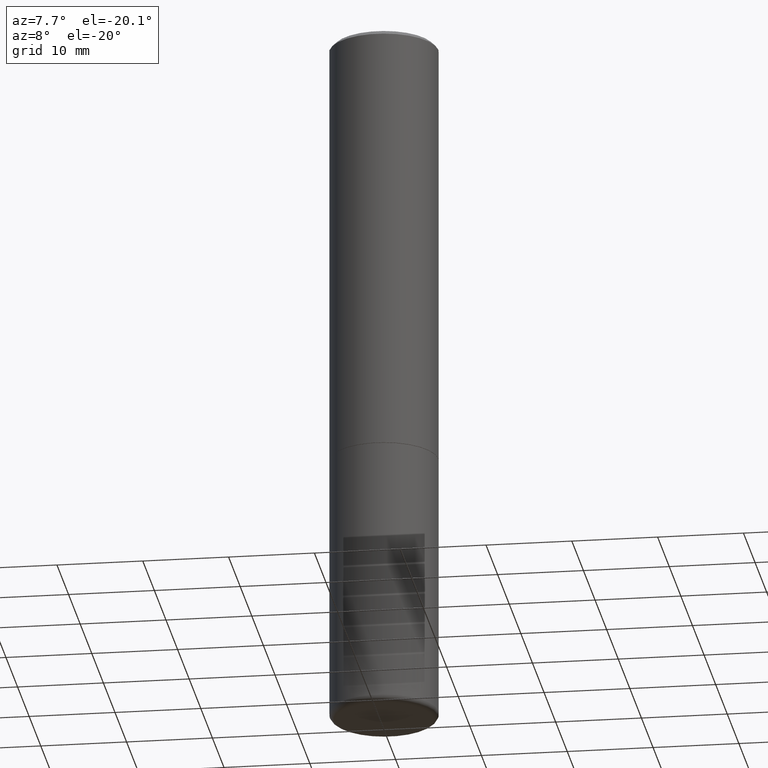
[diagram: clean part render]
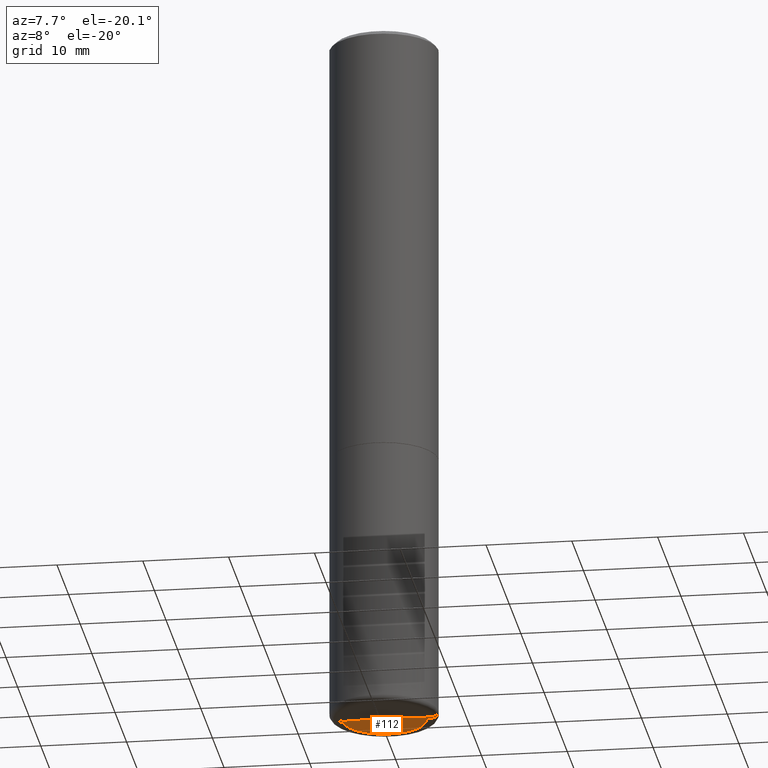
[diagram: same view with one face highlighted and labeled with its STEP entity id]
A machine part, auxiliary view. The second image highlights one B-rep face of the part: STEP entity #112.
In plain terms, the highlighted conical surface has half-angle 88 deg.
Its self-contained STEP definition (entity closure, byte-faithful):
#5 = EDGE_CURVE ( 'NONE', #446, #434, #256, .T. ) ;
#26 = DIRECTION ( 'NONE',  ( -2.445468806185136597E-29, 3.491481338843145583E-15, 1.000000000000000000 ) ) ;
#31 = ORIENTED_EDGE ( 'NONE', *, *, #71, .T. ) ;
#32 = CARTESIAN_POINT ( 'NONE',  ( 0.1930732039350491758, -1.267108020581511100E-14, -3.249767298070359800 ) ) ;
#66 = VECTOR ( 'NONE', #260, 39.37007874015748143 ) ;
#71 = EDGE_CURVE ( 'NONE', #177, #434, #449, .T. ) ;
#75 = CARTESIAN_POINT ( 'NONE',  ( 7.947204554791619182E-29, -1.134650187679537143E-14, -3.249767298070359800 ) ) ;
#78 = FACE_OUTER_BOUND ( 'NONE', #186, .T. ) ;
#82 = DIRECTION ( 'NONE',  ( 2.445468806185136597E-29, -3.491481338843145583E-15, -1.000000000000000000 ) ) ;
#112 = ADVANCED_FACE ( 'NONE', ( #78 ), #431, .F. ) ;
#163 = CARTESIAN_POINT ( 'NONE',  ( 7.929934496680489280E-29, -1.132408133894856808E-14, -3.243025033220710451 ) ) ;
#165 = AXIS2_PLACEMENT_3D ( 'NONE', #75, #82, #378 ) ;
#177 = VERTEX_POINT ( 'NONE', #163 ) ;
#186 = EDGE_LOOP ( 'NONE', ( #395, #31, #236 ) ) ;
#195 = LINE ( 'NONE', #349, #225 ) ;
#206 = EDGE_CURVE ( 'NONE', #177, #446, #195, .T. ) ;
#225 = VECTOR ( 'NONE', #270, 39.37007874015748143 ) ;
#236 = ORIENTED_EDGE ( 'NONE', *, *, #5, .F. ) ;
#256 = CIRCLE ( 'NONE', #280, 0.1930732039350491758 ) ;
#260 = DIRECTION ( 'NONE',  ( -0.9993908270190957621, 6.856857904024556470E-15, -0.03489949670250108021 ) ) ;
#270 = DIRECTION ( 'NONE',  ( 0.9993908270190957621, -6.978169709227541488E-15, -0.03489949670250108021 ) ) ;
#280 = AXIS2_PLACEMENT_3D ( 'NONE', #332, #26, #405 ) ;
#299 = CARTESIAN_POINT ( 'NONE',  ( -0.1930732039350491758, -9.998278899655613929E-15, -3.249767298070359800 ) ) ;
#332 = CARTESIAN_POINT ( 'NONE',  ( 7.947204554791619182E-29, -1.134650187679537143E-14, -3.249767298070359800 ) ) ;
#336 = CARTESIAN_POINT ( 'NONE',  ( -0.1930732039350491758, -9.998278899655613929E-15, -3.249767298070359800 ) ) ;
#349 = CARTESIAN_POINT ( 'NONE',  ( 0.1930732039350491758, -1.267108020581511100E-14, -3.249767298070359800 ) ) ;
#378 = DIRECTION ( 'NONE',  ( -1.000000000000000000, 6.982962677686266711E-15, 0.000000000000000000 ) ) ;
#395 = ORIENTED_EDGE ( 'NONE', *, *, #206, .F. ) ;
#405 = DIRECTION ( 'NONE',  ( 1.000000000000000000, -6.982962677686266711E-15, 0.000000000000000000 ) ) ;
#431 = CONICAL_SURFACE ( 'NONE', #165, 0.1930732039350491758, 1.535889741755009918 ) ;
#434 = VERTEX_POINT ( 'NONE', #336 ) ;
#446 = VERTEX_POINT ( 'NONE', #32 ) ;
#449 = LINE ( 'NONE', #299, #66 ) ;